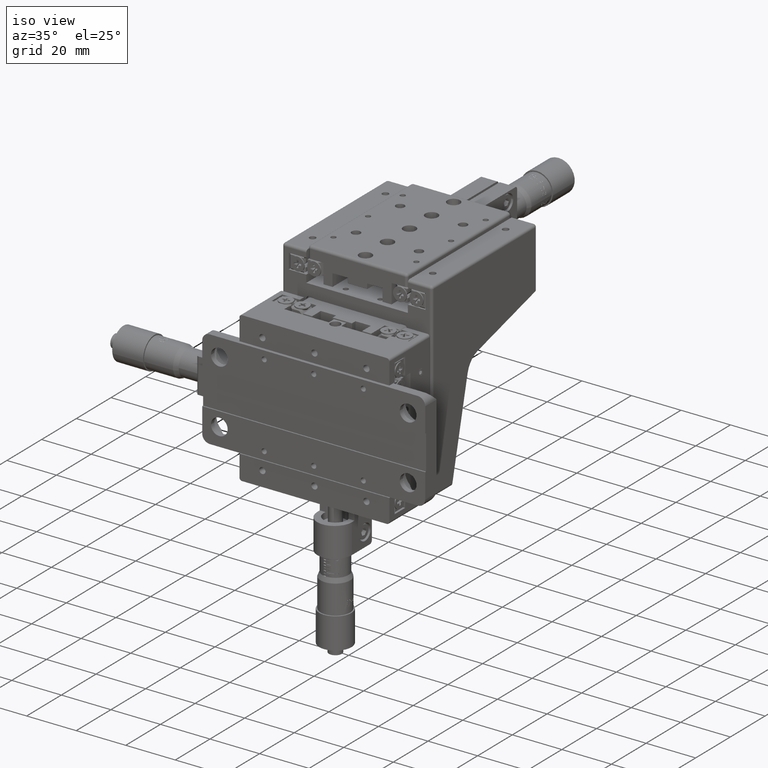
[diagram: clean part render]
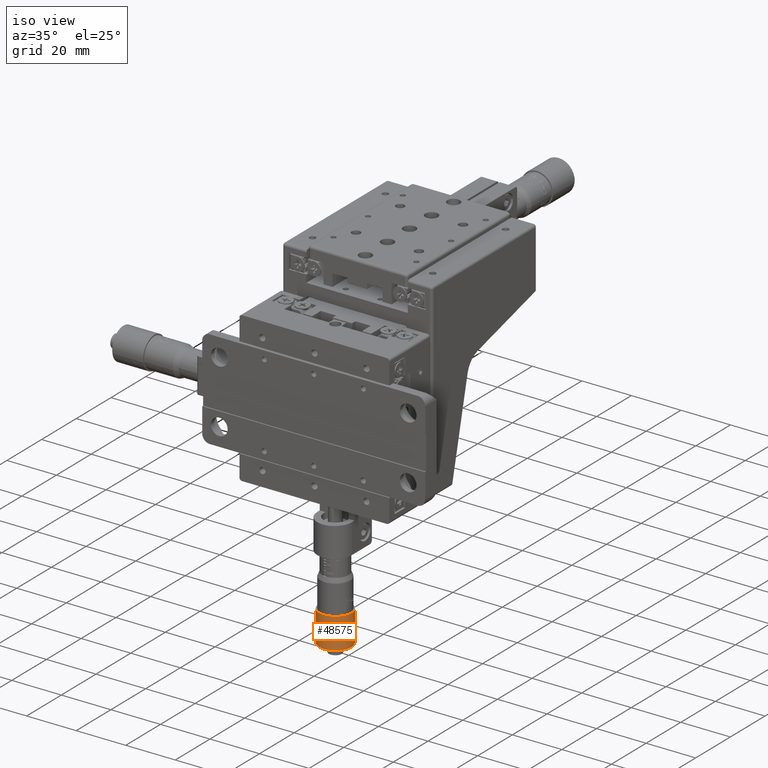
[diagram: same view with one face highlighted and labeled with its STEP entity id]
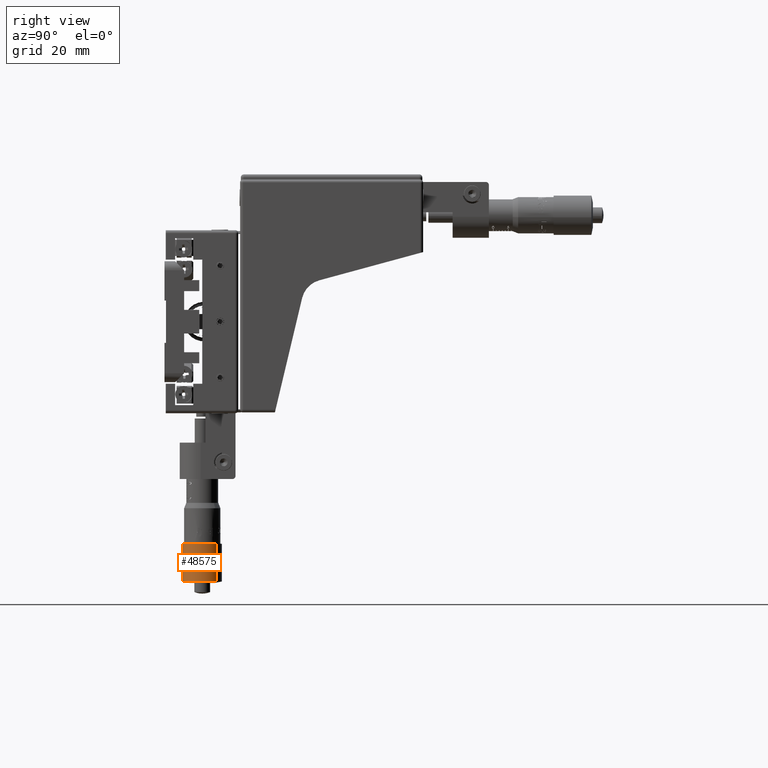
[diagram: same view with one face highlighted and labeled with its STEP entity id]
A machine part, iso view. The second image highlights one B-rep face of the part: STEP entity #48575.
A second angle (right view) of the same face is appended — the face is thin or edge-on in the first view.
In plain terms, the highlighted cylindrical surface (edge-blend (fillet) strip) has radius 6.5 mm, axis along (-0, 0, -1).
Its self-contained STEP definition (entity closure, byte-faithful):
#3296 = DIRECTION ( 'NONE',  ( -9.056811752226560300E-017, 1.207152097831592400E-016, -1.000000000000000000 ) ) ;
#5740 = AXIS2_PLACEMENT_3D ( 'NONE', #35673, #84000, #42595 ) ;
#7557 = EDGE_CURVE ( 'NONE', #52213, #70539, #38534, .T. ) ;
#8722 = DIRECTION ( 'NONE',  ( -9.056811752226560300E-017, 1.207152097831592400E-016, -1.000000000000000000 ) ) ;
#9031 = DIRECTION ( 'NONE',  ( -0.6993785564164134400, -0.7147514496836600000, 0.0000000000000000000 ) ) ;
#10265 = CARTESIAN_POINT ( 'NONE',  ( -4.545960616706811800, 7.654115577054803100, -102.4410230692076300 ) ) ;
#14010 = DIRECTION ( 'NONE',  ( -9.056811752226560300E-017, 1.207152097831592400E-016, -1.000000000000000000 ) ) ;
#15672 = VECTOR ( 'NONE', #14010, 1000.000000000000000 ) ;
#22610 = CARTESIAN_POINT ( 'NONE',  ( -1.135943290096793900E-013, 12.29999999999860400, -102.4410230692076300 ) ) ;
#25964 = LINE ( 'NONE', #10265, #44296 ) ;
#28121 = CIRCLE ( 'NONE', #5740, 6.500000000000015100 ) ;
#29523 = EDGE_CURVE ( 'NONE', #89562, #74810, #28121, .T. ) ;
#32564 = ORIENTED_EDGE ( 'NONE', *, *, #34001, .F. ) ;
#34001 = EDGE_CURVE ( 'NONE', #89562, #52213, #68634, .T. ) ;
#35673 = CARTESIAN_POINT ( 'NONE',  ( -1.033675260837217800E-013, 12.29999999999860800, -73.39999999999999100 ) ) ;
#36202 = ORIENTED_EDGE ( 'NONE', *, *, #64700, .T. ) ;
#37891 = DIRECTION ( 'NONE',  ( -9.056811752226560300E-017, 1.207152097831592400E-016, -1.000000000000000000 ) ) ;
#38534 = CIRCLE ( 'NONE', #84505, 6.500000000000015100 ) ;
#41094 = CYLINDRICAL_SURFACE ( 'NONE', #45272, 6.500000000000015100 ) ;
#42595 = DIRECTION ( 'NONE',  ( -0.6993785564164134400, -0.7147514496836600000, 0.0000000000000000000 ) ) ;
#44296 = VECTOR ( 'NONE', #3296, 1000.000000000000000 ) ;
#45272 = AXIS2_PLACEMENT_3D ( 'NONE', #22610, #8722, #9031 ) ;
#48575 = ADVANCED_FACE ( 'NONE', ( #86590 ), #41094, .T. ) ;
#52213 = VERTEX_POINT ( 'NONE', #79602 ) ;
#54606 = CARTESIAN_POINT ( 'NONE',  ( 4.545960616706580900, 16.94588442294240200, -73.39999999999999100 ) ) ;
#55342 = CARTESIAN_POINT ( 'NONE',  ( 4.545960616706583600, 16.94588442294240600, -102.4410230692076300 ) ) ;
#55737 = CARTESIAN_POINT ( 'NONE',  ( -4.545960616706860700, 7.654115577054790600, -85.90000000000000600 ) ) ;
#64700 = EDGE_CURVE ( 'NONE', #74810, #70539, #25964, .T. ) ;
#64900 = ORIENTED_EDGE ( 'NONE', *, *, #29523, .T. ) ;
#68634 = LINE ( 'NONE', #55342, #15672 ) ;
#70180 = CARTESIAN_POINT ( 'NONE',  ( -4.545960616706801200, 7.654115577054808400, -73.39999999999999100 ) ) ;
#70539 = VERTEX_POINT ( 'NONE', #55737 ) ;
#74810 = VERTEX_POINT ( 'NONE', #70180 ) ;
#79328 = CARTESIAN_POINT ( 'NONE',  ( -1.622534140969065700E-013, 12.29999999999859000, -85.90000000000000600 ) ) ;
#79602 = CARTESIAN_POINT ( 'NONE',  ( 4.545960616706536500, 16.94588442294239200, -85.90000000000000600 ) ) ;
#84000 = DIRECTION ( 'NONE',  ( -9.056811752226560300E-017, 1.207152097831592400E-016, -1.000000000000000000 ) ) ;
#84505 = AXIS2_PLACEMENT_3D ( 'NONE', #79328, #37891, #86275 ) ;
#84937 = EDGE_LOOP ( 'NONE', ( #32564, #64900, #36202, #88188 ) ) ;
#86275 = DIRECTION ( 'NONE',  ( -0.6993785564164134400, -0.7147514496836600000, 0.0000000000000000000 ) ) ;
#86590 = FACE_OUTER_BOUND ( 'NONE', #84937, .T. ) ;
#88188 = ORIENTED_EDGE ( 'NONE', *, *, #7557, .F. ) ;
#89562 = VERTEX_POINT ( 'NONE', #54606 ) ;